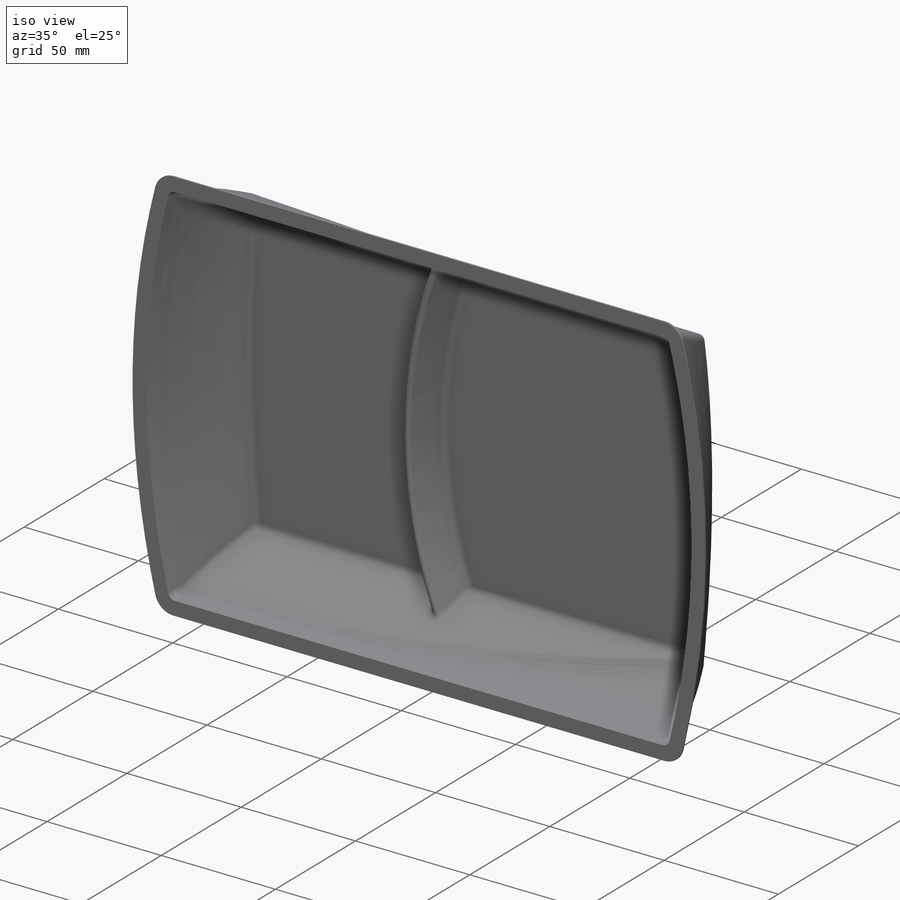
[diagram: iso view]
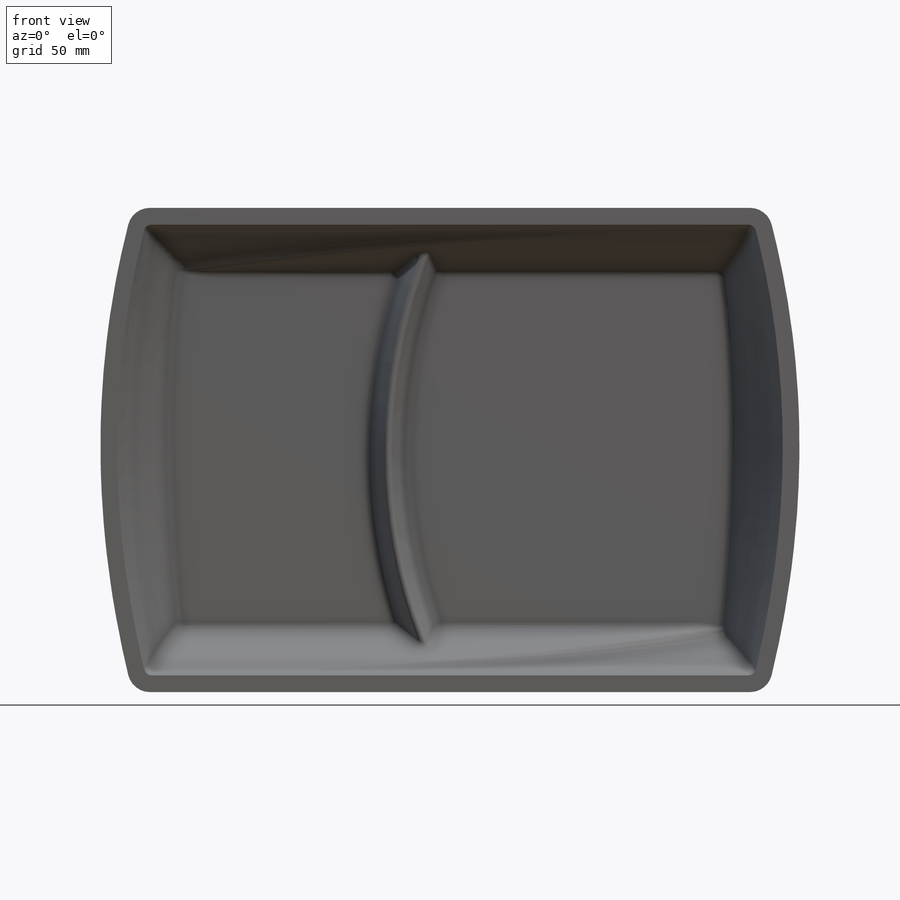
[diagram: front view]
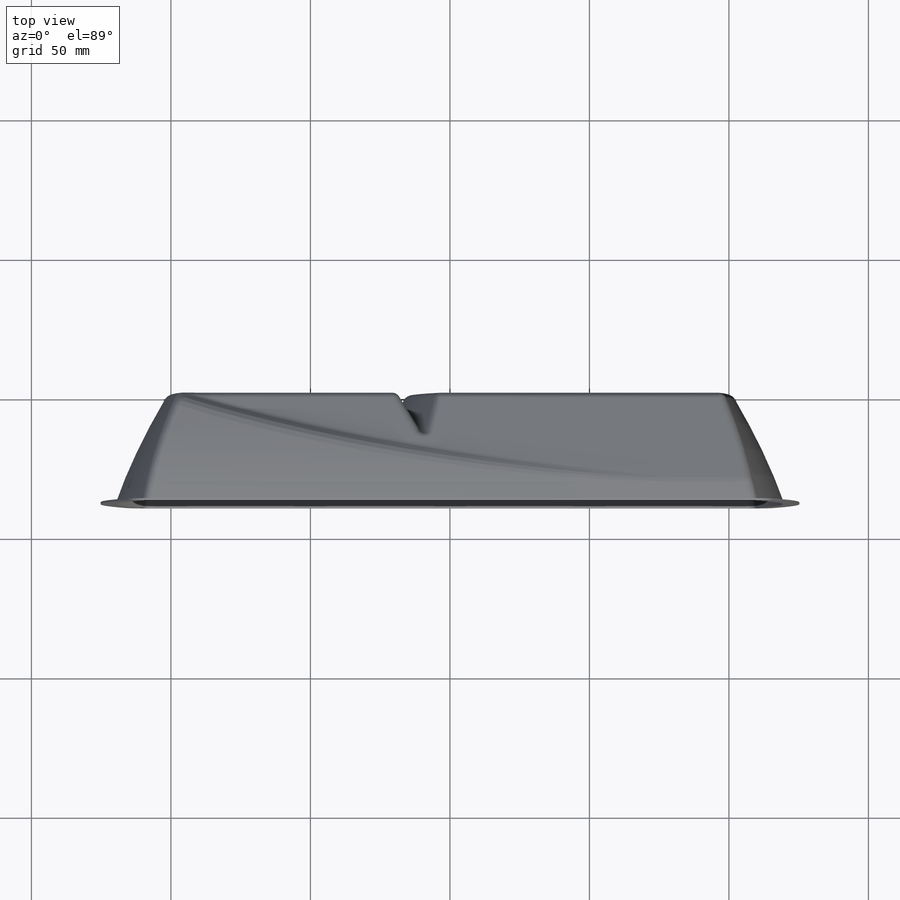
[diagram: top view]
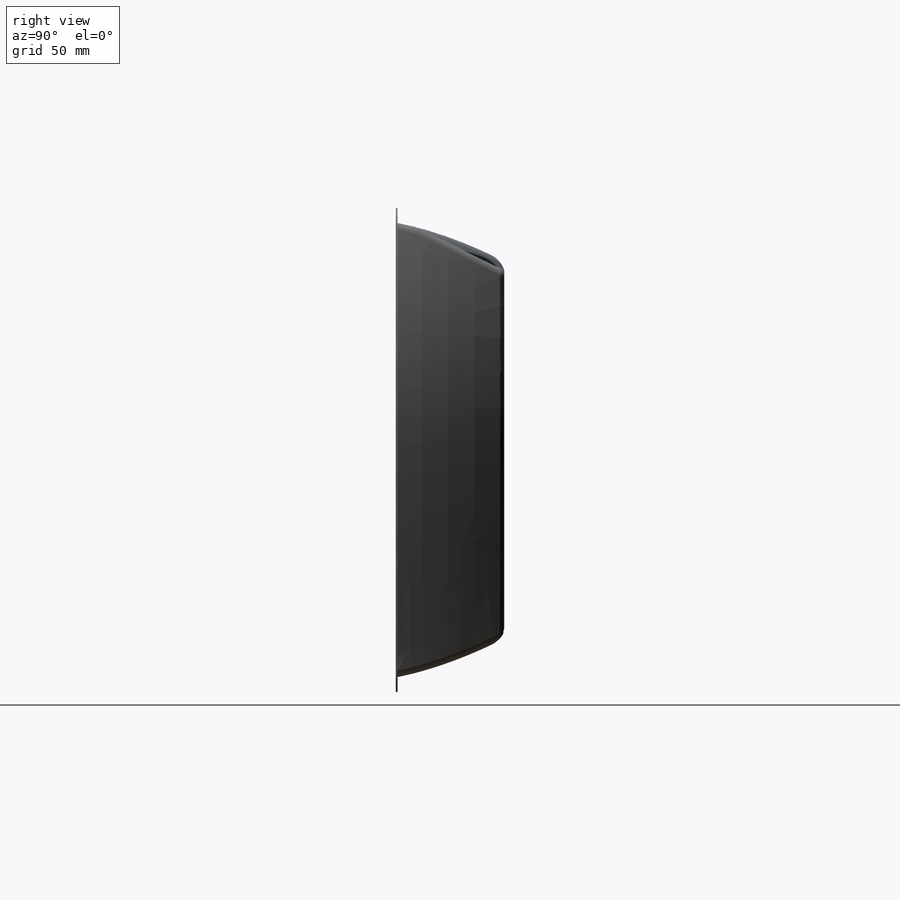
[diagram: right view]
SOLIDWORKS PART (.sldprt)
format: sldprt  version: not decoded by parser v0  size: 1,347,072 bytes
history: native  units: mm
features: fillet x24, sketch x13, plane x10, shell x2, material x1 (+9 scaffold rows collapsed)
feature tree (59):
  scaffold x9  (default folders/planes/origin — collapsed)
  material  "PP copolymère"
  plane  "Plan de face"
  plane  "Plan de dessus"
  plane  "Plan de droite"
  sketch  "Esquisse1"  dims[c1.D1=~96.170216mm c1.D2=~187.896923mm c2.D1=135.0mm c2.D2=195.0mm c2.D3=195.0mm]
  plane  "Plan1"  Offset=39mm
  sketch  "Esquisse3"  dims[c1.D1=~226.501176mm c1.D2=~234.789467mm c2.D1=250.0mm c2.D2=160.0mm c2.D3=125.0mm c2.D4=80.0mm c3.D1=230.0mm c3.D2=250.0mm c4.D1=~140.833237mm c4.D2=170.0mm c5.D1=163.0mm c5.D2=~240.005468mm]
  sketch  "Esquisse3D1"  dims[c1.D1=~43.660623mm c2.D1=~168.211033mm]
  sketch  "Esquisse3D2"
  sketch  "Esquisse3D3"
  sketch  "Esquisse3D4"
  shell  "Coque1"  Thickness=0.7mm
  sketch  "Esquisse4"  dims[D1=0.7mm D5=6.0mm D6=1.0mm D7=5.0mm]
  plane  "Plan2"  Offset=15mm
  sketch  "Esquisse6"  dims[D1=2.0mm D3=22.0deg]
  plane  "Plan4"
  plane  "Plan5"  Offset=90mm
  sketch  "Esquisse9"  dims[D1=~14.301185mm]
  plane  "Plan6"  Offset=90mm
  sketch  "Esquisse10"  dims[D1=~13.726935mm]
  sketch  "Esquisse3D5"
  fillet  "Congé1"  [1 undecoded]
  fillet  "Congé2"  Radius=2mm
  plane  "Plan7"
  plane  "Plan8"  Offset=0mm ModelUUID=0mm UUID=0mm
  fillet  "Congé3"  Radius=8mm
  fillet  "Congé4"  Radius=8mm
  fillet  "Congé5"  Radius=8mm
  fillet  "Congé6"  Radius=8mm
  sketch  "Esquisse15"  dims[Nervure5=0.0deg D1=6.0mm]
  fillet  "Congé8"  Radius=4mm
  fillet  "Congé22"  Radius=8mm
  sketch  "Esquisse17"  dims[Nervure6=0.0deg D1=6.0mm]
  fillet  "Congé24"  Radius=3mm
  fillet  "Congé25"  Radius=8mm
  shell  "Coque7"  Thickness=0.6mm
  fillet  "Congé26"  Radius=3mm
  fillet  "Congé27"  Radius=3mm
  fillet  "Congé28"  Radius=3mm
  fillet  "Congé30"  Radius=3mm
  fillet  "Congé31"  Radius=3mm
  fillet  "Congé32"  Radius=3mm
  fillet  "Congé33"  Radius=3mm
  fillet  "Congé34"  Radius=3mm
  fillet  "Congé35"  Radius=3mm
  fillet  "Congé36"  Radius=3mm
  fillet  "Congé37"  Radius=3mm
  fillet  "Congé38"  Radius=3mm
  fillet  "Congé39"  Radius=3mm
  fillet  "Congé43"  Radius=3mm
decode coverage: 34 of 39 modeling features carry decoded parameters
note: ~ marks probable driven/reference dimensions
note: 1 parameter value undecoded
note: suppression state not decoded; provenance and decode notes live in map.json
